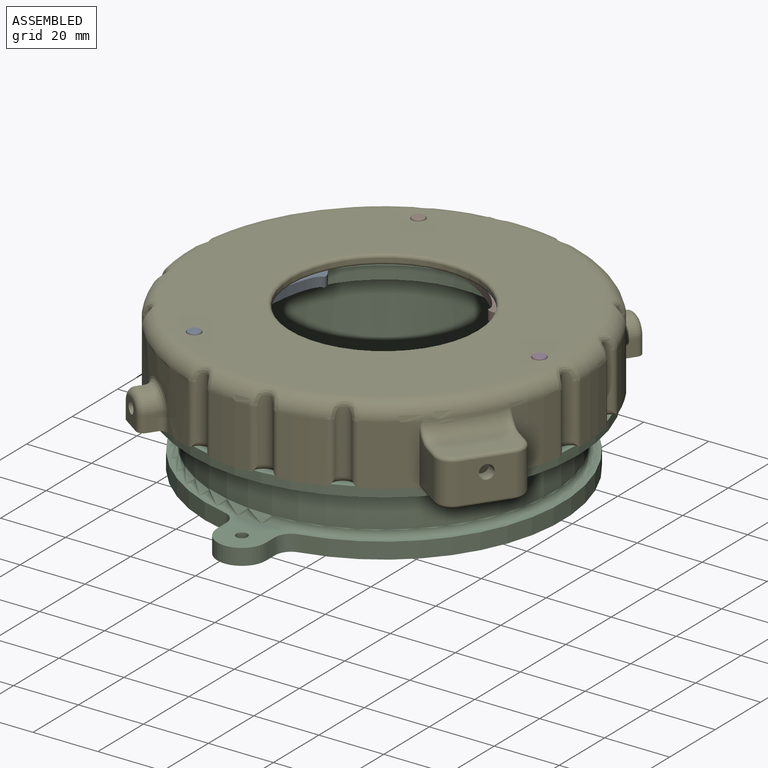
[diagram: assembled view]
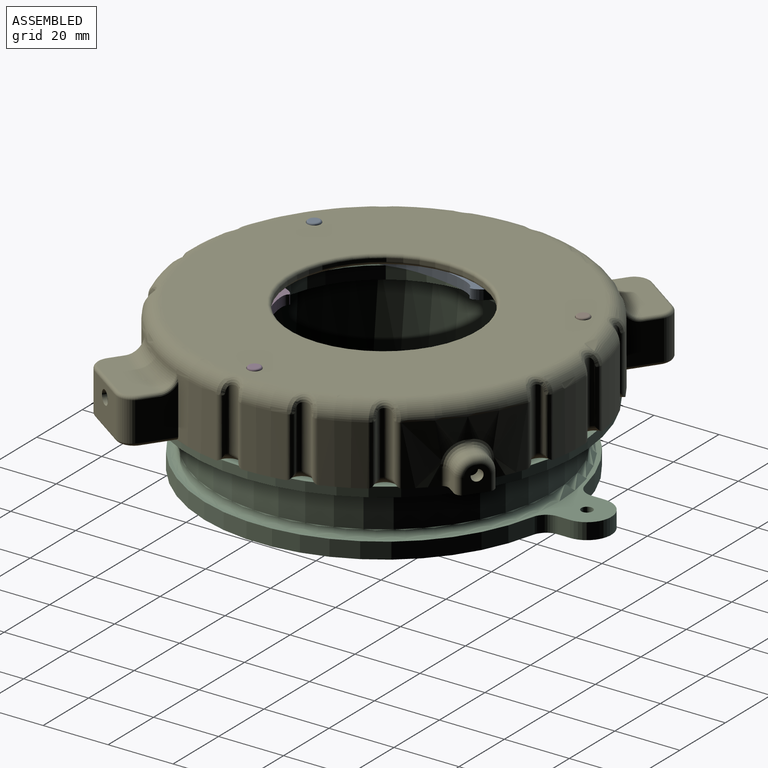
[diagram: assembled view, second angle]
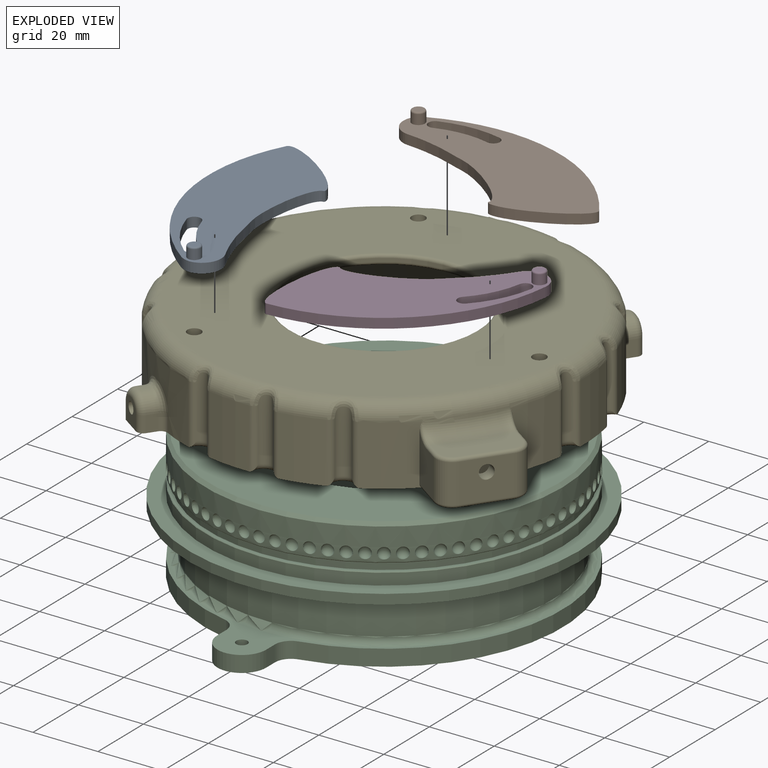
[diagram: exploded view]
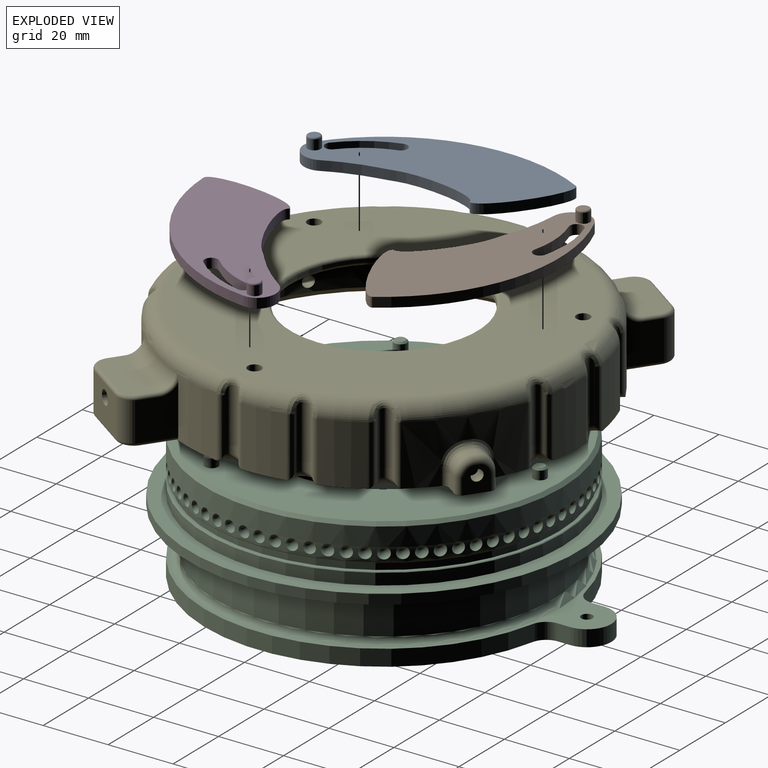
[diagram: exploded view, second angle]
ASSEMBLY  parts=5 mates=8
PART A: 17 faces, bbox 68.7x35.4x6.5 mm
  f0: extruded ~26.08x3.35mm, area 81.3mm2, adj f3,f4,f8,f16
  f1: extruded ~24.8x14.67mm, area 90.9mm2, adj f2,f3,f4,f8
  f2: cylinder r=54.5mm len=67.29mm, axis (0,0,-1), area 232.4mm2, adj f1,f3,f4,f14
  f3: plane 68.73x35.38mm, normal (0,0,1), area 1340.6mm2, adj f0,f1,f2,f5,f7,f8,f9,f10
  f4: plane 68.73x35.38mm, normal (0,0,-1), area 1353.2mm2, adj f0,f1,f2,f7,f8,f9,f10,f11
  f5: cylinder r=2mm len=4mm, axis (0,0,-1), area 37.7mm2, adj f3,f13
  f6: plane 3x3mm, normal (0,0,1), area 7.1mm2, adj f13
  f7: extruded ~14.32x6.42mm, area 47.2mm2, adj f3,f4,f15,f16
  f8: cylinder r=0.3mm len=3mm, axis (0,0,-1), area 1mm2, adj f0,f1,f3,f4
  f9: cylinder r=32.5mm len=14.49mm, axis (0,0,1), area 56.5mm2, adj f3,f4,f10,f12
  f10: cylinder r=2.05mm len=3.74mm, axis (0,0,1), area 19.3mm2, adj f3,f4,f9,f11
  f11: cylinder r=28.4mm len=12.66mm, axis (0,0,1), area 49.4mm2, adj f3,f4,f10,f12
  f12: cylinder r=2.05mm len=3.95mm, axis (0,0,1), area 19.3mm2, adj f3,f4,f9,f11
  f13: torus R=1.5mm, axis (0,0,1), area 9mm2, adj f5,f6
  f14: cylinder r=6mm len=3.7mm, axis (0,0,-1), area 11.6mm2, adj f2,f3,f4,f15
  f15: cylinder r=6mm len=9.02mm, axis (0,0,1), area 34.5mm2, adj f3,f4,f7,f14
  f16: cylinder r=60mm len=4.4mm, axis (0,0,-1), area 13.9mm2, adj f0,f3,f4,f7
PART B: same geometry as A
PART C: 116 faces, bbox 120x140x43.2 mm
  f0: plane 108x108mm, normal (0,0,1), area 5274.7mm2, adj f8,f103,f106,f109,f112
  f1: cylinder r=55mm len=110mm, axis (0,0,-1), area 1226.8mm2, adj f4,f10
  f2: cylinder r=60mm len=120mm, axis (0,0,1), area 1131mm2, adj f3,f4
  f3: plane 120x120mm, normal (0,0,-1), area 2148.8mm2, adj f2,f29
  f4: plane 120x120mm, normal (0,0,1), area 1806.4mm2, adj f1,f2
  f5: plane 109.6x109.6mm, normal (0,0,-1), area 358.1mm2, adj f6,f11
  f6: cylinder r=53.75mm len=107.5mm, axis (0,0,1), area 844.3mm2, adj f5,f7
  f7: plane 109.6x109.6mm, normal (0,0,1), area 358.1mm2, adj f6,f10
  f8: cone r=54mm half-angle=45deg, axis (0,0,-1), area 484.3mm2, adj f0,f9
  f9: cylinder r=55mm len=110mm, axis (0,0,-1), area 2746.1mm2, adj f8,f11,f31,f32,f33,f34,f35,f36
  f10: cone r=54.8mm half-angle=45deg, axis (0,0,-1), area 97.6mm2, adj f1,f7
  f11: cone r=55mm half-angle=45deg, axis (0,0,1), area 97.6mm2, adj f5,f9
  f12: cylinder r=52mm len=104mm, axis (0,0,-1), area 3463.3mm2, adj f29,f30
  f13: plane 5x3.82mm, normal (-1,0,0), area 19.1mm2, adj f14,f17,f25,f26
  f14: cylinder r=7.5mm len=15mm, axis (0,0,-1), area 117.8mm2, adj f13,f15,f25,f26
  f15: plane 5x3.82mm, normal (1,0,0), area 19.1mm2, adj f14,f23,f25,f26
  f16: cylinder r=1.75mm len=5mm, axis (0,0,-1), area 55mm2, adj f25,f26
  f17: cylinder r=5mm len=5mm, axis (0,0,-1), area 34mm2, adj f13,f24,f25,f26
  f18: cylinder r=5mm len=5mm, axis (0,0,-1), area 34mm2, adj f21,f24,f25,f26
  f19: plane 5x3.82mm, normal (1,0,0), area 19.1mm2, adj f20,f25,f26,f27
  f20: cylinder r=7.5mm len=15mm, axis (0,0,-1), area 117.8mm2, adj f19,f21,f25,f26
  f21: plane 5x3.82mm, normal (-1,0,0), area 19.1mm2, adj f18,f20,f25,f26
  f22: cylinder r=1.75mm len=5mm, axis (0,0,-1), area 55mm2, adj f25,f26
  f23: cylinder r=5mm len=5mm, axis (0,0,-1), area 34mm2, adj f15,f25,f26,f28
  f24: cylinder r=55mm len=107.59mm, axis (0,0,-1), area 748.5mm2, adj f17,f18,f25,f26
  f25: plane 140x110mm, normal (0,0,-1), area 9904.6mm2, adj f13,f14,f15,f16,f17,f18,f19,f20
  f26: plane 140x110mm, normal (0,0,1), area 743.7mm2, adj f13,f14,f15,f16,f17,f18,f19,f20
  f27: cylinder r=5mm len=5mm, axis (0,0,-1), area 34mm2, adj f19,f25,f26,f28
  f28: cylinder r=55mm len=107.59mm, axis (0,0,-1), area 748.5mm2, adj f23,f25,f26,f27
  f29: torus R=54mm, axis (0,0,-1), area 1040.8mm2, adj f3,f12
  f30: torus R=54mm, axis (0,0,-1), area 1040.8mm2, adj f12,f26
  f31: sphere r=1.75mm, area 19.1mm2, adj f9
  f32: sphere r=1.75mm, area 19.1mm2, adj f9
  f33: sphere r=1.75mm, area 20.8mm2, adj f9
  f34: sphere r=1.75mm, area 19.1mm2, adj f9
  f35: sphere r=1.75mm, area 19.2mm2, adj f9
  f36: sphere r=1.75mm, area 20.8mm2, adj f9
  f37: sphere r=1.75mm, area 19.1mm2, adj f9
  f38: sphere r=1.75mm, area 20.8mm2, adj f9
  f39: sphere r=1.75mm, area 19.2mm2, adj f9
  f40: sphere r=1.75mm, area 20.8mm2, adj f9
  f41: sphere r=1.75mm, area 19.2mm2, adj f9
  f42: sphere r=1.75mm, area 20.8mm2, adj f9
  f43: sphere r=1.75mm, area 20.8mm2, adj f9
  f44: sphere r=1.75mm, area 19.1mm2, adj f9
  f45: sphere r=1.75mm, area 19.1mm2, adj f9
  f46: sphere r=1.75mm, area 20.8mm2, adj f9
  f47: sphere r=1.75mm, area 20.8mm2, adj f9
  f48: sphere r=1.75mm, area 19.1mm2, adj f9
  f49: sphere r=1.75mm, area 19.1mm2, adj f9
  f50: sphere r=1.75mm, area 19.1mm2, adj f9
  f51: sphere r=1.75mm, area 20.8mm2, adj f9
  f52: sphere r=1.75mm, area 19.1mm2, adj f9
  f53: sphere r=1.75mm, area 19.2mm2, adj f9
  f54: sphere r=1.75mm, area 20.8mm2, adj f9
  f55: sphere r=1.75mm, area 19.1mm2, adj f9
  f56: sphere r=1.75mm, area 20.8mm2, adj f9
  f57: sphere r=1.75mm, area 19.2mm2, adj f9
  f58: sphere r=1.75mm, area 20.8mm2, adj f9
  f59: sphere r=1.75mm, area 19.2mm2, adj f9
  f60: sphere r=1.75mm, area 20.8mm2, adj f9
  f61: sphere r=1.75mm, area 20.8mm2, adj f9
  f62: sphere r=1.75mm, area 19.1mm2, adj f9
  f63: sphere r=1.75mm, area 19.1mm2, adj f9
  f64: sphere r=1.75mm, area 20.8mm2, adj f9
  f65: sphere r=1.75mm, area 20.8mm2, adj f9
  f66: sphere r=1.75mm, area 19.1mm2, adj f9
  f67: sphere r=1.75mm, area 19.1mm2, adj f9
  f68: sphere r=1.75mm, area 19.1mm2, adj f9
  f69: sphere r=1.75mm, area 20.8mm2, adj f9
  f70: sphere r=1.75mm, area 20.8mm2, adj f9
  f71: sphere r=1.75mm, area 19.1mm2, adj f9
  f72: sphere r=1.75mm, area 19.1mm2, adj f9
  f73: sphere r=1.75mm, area 20.8mm2, adj f9
  f74: sphere r=1.75mm, area 20.8mm2, adj f9
  f75: sphere r=1.75mm, area 19.2mm2, adj f9
  f76: sphere r=1.75mm, area 20.8mm2, adj f9
  f77: sphere r=1.75mm, area 19.2mm2, adj f9
  f78: sphere r=1.75mm, area 20.8mm2, adj f9
  f79: sphere r=1.75mm, area 19.1mm2, adj f9
  f80: sphere r=1.75mm, area 20.8mm2, adj f9
  f81: sphere r=1.75mm, area 19.2mm2, adj f9
  f82: sphere r=1.75mm, area 20.8mm2, adj f9
  f83: sphere r=1.75mm, area 20.8mm2, adj f9
  f84: sphere r=1.75mm, area 19.1mm2, adj f9
  f85: sphere r=1.75mm, area 19.1mm2, adj f9
  f86: sphere r=1.75mm, area 19.1mm2, adj f9
  f87: sphere r=1.75mm, area 20.8mm2, adj f9
  f88: sphere r=1.75mm, area 20.8mm2, adj f9
  f89: sphere r=1.75mm, area 19.1mm2, adj f9
  f90: sphere r=1.75mm, area 19.1mm2, adj f9
  f91: sphere r=1.75mm, area 20.8mm2, adj f9
  f92: sphere r=1.75mm, area 20.8mm2, adj f9
  f93: sphere r=1.75mm, area 19.2mm2, adj f9
  f94: sphere r=1.75mm, area 20.8mm2, adj f9
  f95: sphere r=1.75mm, area 19.2mm2, adj f9
  f96: sphere r=1.75mm, area 20.8mm2, adj f9
  f97: sphere r=1.75mm, area 19.1mm2, adj f9
  f98: sphere r=1.75mm, area 20.8mm2, adj f9
  f99: sphere r=1.75mm, area 19.2mm2, adj f9
  f100: sphere r=1.75mm, area 19.1mm2, adj f9
  f101: sphere r=1.75mm, area 20.8mm2, adj f9
  f102: sphere r=1.75mm, area 19.1mm2, adj f9
  f103: cylinder r=2mm len=4mm, axis (0,0,-1), area 33.9mm2, adj f0,f105
  f104: plane 3x3mm, normal (0,0,1), area 7.1mm2, adj f105
  f105: cone r=1.5mm half-angle=45deg, axis (0,0,-1), area 7.8mm2, adj f103,f104
  f106: cylinder r=2mm len=4mm, axis (0,0,-1), area 33.9mm2, adj f0,f108
  f107: plane 3x3mm, normal (0,0,1), area 7.1mm2, adj f108
  f108: cone r=1.5mm half-angle=45deg, axis (0,0,-1), area 7.8mm2, adj f106,f107
  f109: cylinder r=2mm len=4mm, axis (0,0,-1), area 33.9mm2, adj f0,f111
  f110: plane 3x3mm, normal (0,0,1), area 7.1mm2, adj f111
  f111: cone r=1.5mm half-angle=45deg, axis (0,0,-1), area 7.8mm2, adj f109,f110
  f112: cylinder r=35mm len=70mm, axis (0,0,1), area 879.6mm2, adj f0,f113
  f113: plane 94x94mm, normal (0,0,-1), area 3091.3mm2, adj f112,f115
  f114: plane 94x94mm, normal (0,0,1), area 6939.8mm2, adj f115
  f115: cylinder r=47mm len=94mm, axis (0,0,-1), area 9154.6mm2, adj f113,f114
PART D: same geometry as A
PART E: 203 faces, bbox 150.8x136x23.4 mm
  f0: cylinder r=2.15mm len=12.4mm, axis (1,0,0), area 167.5mm2, adj f31,f172
  f1: plane 53.71x23.5mm, normal (0,0,-1), area 489.7mm2, adj f21,f28,f34,f107,f122,f162,f163,f166
  f2: cylinder r=2.15mm len=12.4mm, axis (1,0,0), area 167.5mm2, adj f31,f166
  f3: plane 53.71x23.5mm, normal (0,0,-1), area 489.7mm2, adj f15,f27,f34,f137,f152,f168,f171,f172
  f4: plane 13.56x12.34mm, normal (0,0,-1), area 52.7mm2, adj f8,f34,f148,f152
  f5: plane 14.36x10.74mm, normal (0,0,-1), area 52.7mm2, adj f7,f34,f144,f148
  f6: cylinder r=61.2mm len=34.07mm, axis (0,0,-1), area 481mm2, adj f12,f18,f71,f72,f73,f74,f75,f114
  f7: cylinder r=61.2mm len=18.4mm, axis (0,0,-1), area 242.2mm2, adj f5,f12,f144,f145,f148,f150
  f8: cylinder r=61.2mm len=18.4mm, axis (0,0,-1), area 242.2mm2, adj f4,f12,f148,f149,f152,f154
  f9: plane 13.56x12.34mm, normal (0,0,-1), area 52.7mm2, adj f14,f34,f133,f137
  f10: plane 14.36x10.74mm, normal (0,0,-1), area 52.7mm2, adj f13,f34,f129,f133
  f11: plane 35.36x13.6mm, normal (0,0,-1), area 196.5mm2, adj f23,f34,f39,f40,f41,f45,f46,f49
  f12: torus R=56.2mm, axis (0,0,1), area 2369.6mm2, adj f6,f7,f8,f13,f14,f15,f19,f20
  f13: cylinder r=61.2mm len=18.4mm, axis (0,0,-1), area 242.2mm2, adj f10,f12,f129,f130,f133,f135
  f14: cylinder r=61.2mm len=18.4mm, axis (0,0,-1), area 242.2mm2, adj f9,f12,f133,f134,f137,f139
  f15: cylinder r=61.2mm len=18.4mm, axis (0,0,-1), area 283.5mm2, adj f3,f12,f82,f137,f138,f180,f185
  f16: plane 13.56x12.34mm, normal (0,0,-1), area 52.7mm2, adj f20,f34,f118,f122
  f17: plane 14.36x10.74mm, normal (0,0,-1), area 52.7mm2, adj f19,f34,f114,f118
  f18: plane 35.36x13.6mm, normal (0,0,-1), area 196.5mm2, adj f6,f34,f35,f36,f37,f63,f64,f67
  f19: cylinder r=61.2mm len=18.4mm, axis (0,0,-1), area 242.2mm2, adj f12,f17,f114,f115,f118,f120
  f20: cylinder r=61.2mm len=18.4mm, axis (0,0,-1), area 242.2mm2, adj f12,f16,f118,f119,f122,f124
  f21: cylinder r=61.2mm len=18.4mm, axis (0,0,-1), area 283.5mm2, adj f1,f12,f87,f122,f123,f186,f191
  f22: plane 13.56x12.34mm, normal (0,0,-1), area 52.7mm2, adj f25,f34,f103,f107
  f23: cylinder r=61.2mm len=34.07mm, axis (0,0,-1), area 481mm2, adj f11,f12,f53,f54,f55,f56,f57,f99
  f24: cylinder r=61.2mm len=18.4mm, axis (0,0,-1), area 242.2mm2, adj f12,f26,f99,f100,f103,f105
  f25: cylinder r=61.2mm len=18.4mm, axis (0,0,-1), area 242.2mm2, adj f12,f22,f103,f104,f107,f109
  f26: plane 14.36x10.74mm, normal (0,0,-1), area 52.7mm2, adj f24,f34,f99,f103
  f27: cylinder r=61.2mm len=18.4mm, axis (0,0,-1), area 283.5mm2, adj f3,f12,f84,f152,f153,f174,f181
  f28: cylinder r=61.2mm len=18.4mm, axis (0,0,-1), area 283.5mm2, adj f1,f12,f86,f107,f108,f190,f197
  f29: cylinder r=1.75mm len=6.3mm, axis (0,-1,0), area 69.3mm2, adj f31,f67
  f30: cylinder r=1.75mm len=6.3mm, axis (0,-1,0), area 69.3mm2, adj f31,f49
  f31: cylinder r=55.2mm len=110.4mm, axis (0,0,-1), area 6264mm2, adj f0,f2,f29,f30,f34,f81
  f32: plane 110x110mm, normal (0,0,-1), area 6705.6mm2, adj f81,f198,f200,f201,f202
  f33: plane 112.4x112.4mm, normal (0,0,1), area 7147mm2, adj f12,f157,f158,f159,f199
  f34: cone r=57.2mm half-angle=45deg, axis (0,0,-1), area 998.8mm2, adj f1,f3,f4,f5,f9,f10,f11,f16
  f35: plane 5x3.25mm, normal (-1,0,0), area 16.2mm2, adj f18,f70,f75,f80
  f36: plane 5x3.25mm, normal (1,0,0), area 16.2mm2, adj f18,f69,f71,f76
  f37: plane 8x7mm, normal (0,1,0), area 42.5mm2, adj f18,f44,f76,f77,f78,f79,f80
  f38: plane 2.8x1mm, normal (0,0,1), area 2.8mm2, adj f69,f70,f73,f78
  f39: plane 5x3.25mm, normal (-1,0,0), area 16.2mm2, adj f11,f52,f57,f58
  f40: plane 8x7mm, normal (0,-1,0), area 42.5mm2, adj f11,f43,f58,f59,f60,f61,f62
  f41: plane 5x3.25mm, normal (1,0,0), area 16.2mm2, adj f11,f51,f53,f62
  f42: plane 2.8x1mm, normal (0,0,1), area 2.8mm2, adj f51,f52,f55,f60
  f43: cylinder r=1.75mm len=4mm, axis (0,-1,0), area 44mm2, adj f40,f50
  f44: cylinder r=1.75mm len=4mm, axis (0,-1,0), area 44mm2, adj f37,f68
  f45: plane 6.63x2.5mm, normal (1,0,0), area 16.6mm2, adj f11,f48,f49,f50
  f46: plane 6.63x2.5mm, normal (-1,0,0), area 16.6mm2, adj f11,f47,f49,f50
  f47: plane 2.83x2.5mm, normal (-0.5,0,-0.87), area 8.2mm2, adj f46,f48,f49,f50
  f48: plane 2.83x2.5mm, normal (0.5,0,-0.87), area 8.2mm2, adj f45,f47,f49,f50
  f49: plane 8.26x5.65mm, normal (0,-1,0), area 32.5mm2, adj f11,f30,f45,f46,f47,f48
  f50: plane 8.26x5.65mm, normal (0,1,0), area 32.5mm2, adj f11,f43,f45,f46,f47,f48
  f51: cylinder r=5mm len=5mm, axis (0,-1,0), area 23.8mm2, adj f41,f42,f54,f61
  f52: cylinder r=5mm len=5mm, axis (0,1,0), area 23.8mm2, adj f39,f42,f56,f59
  f53: cylinder r=2mm len=5mm, axis (0,0,-1), area 14.5mm2, adj f11,f23,f41,f54
  f54: bspline ~8.56x8.28mm, area 27mm2, adj f23,f51,f53,f55
  f55: torus R=63.2mm, axis (0,0,1), area 3.1mm2, adj f23,f42,f54,f56
  f56: bspline ~8.56x8.28mm, area 27mm2, adj f23,f52,f55,f57
  f57: cylinder r=2mm len=5mm, axis (0,0,-1), area 14.5mm2, adj f11,f23,f39,f56
  f58: cylinder r=2mm len=5mm, axis (0,0,1), area 15.7mm2, adj f11,f39,f40,f59
  f59: torus R=3mm, axis (0,1,0), area 21.1mm2, adj f40,f52,f58,f60
  f60: cylinder r=2mm len=2mm, axis (-1,0,0), area 3.1mm2, adj f40,f42,f59,f61
  f61: torus R=3mm, axis (0,1,0), area 21.1mm2, adj f40,f51,f60,f62
  f62: cylinder r=2mm len=5mm, axis (0,0,-1), area 15.7mm2, adj f11,f40,f41,f61
  f63: plane 6.63x2.5mm, normal (-1,0,0), area 16.6mm2, adj f18,f66,f67,f68
  f64: plane 6.63x2.5mm, normal (1,0,0), area 16.6mm2, adj f18,f65,f67,f68
  f65: plane 2.83x2.5mm, normal (0.5,0,-0.87), area 8.2mm2, adj f64,f66,f67,f68
  f66: plane 2.83x2.5mm, normal (-0.5,0,-0.87), area 8.2mm2, adj f63,f65,f67,f68
  f67: plane 8.26x5.65mm, normal (0,1,0), area 32.5mm2, adj f18,f29,f63,f64,f65,f66
  f68: plane 8.26x5.65mm, normal (0,-1,0), area 32.5mm2, adj f18,f44,f63,f64,f65,f66
  f69: cylinder r=5mm len=5mm, axis (0,-1,0), area 23.8mm2, adj f36,f38,f72,f77
  f70: cylinder r=5mm len=5mm, axis (0,1,0), area 23.8mm2, adj f35,f38,f74,f79
  f71: cylinder r=2mm len=5mm, axis (0,0,-1), area 14.5mm2, adj f6,f18,f36,f72
  f72: bspline ~8.28x7.4mm, area 27mm2, adj f6,f69,f71,f73
  f73: torus R=63.2mm, axis (0,0,1), area 3.1mm2, adj f6,f38,f72,f74
  f74: bspline ~8.56x8.28mm, area 27mm2, adj f6,f70,f73,f75
  f75: cylinder r=2mm len=5mm, axis (0,0,-1), area 14.5mm2, adj f6,f18,f35,f74
  f76: cylinder r=2mm len=5mm, axis (0,0,1), area 15.7mm2, adj f18,f36,f37,f77
  f77: torus R=3mm, axis (0,1,0), area 21.1mm2, adj f37,f69,f76,f78
  f78: cylinder r=2mm len=2mm, axis (1,0,0), area 3.1mm2, adj f37,f38,f77,f79
  f79: torus R=3mm, axis (0,1,0), area 21.1mm2, adj f37,f70,f78,f80
  f80: cylinder r=2mm len=5mm, axis (0,0,-1), area 15.7mm2, adj f18,f35,f37,f79
  f81: cone r=55.2mm half-angle=45deg, axis (0,0,-1), area 97.9mm2, adj f31,f32
  f82: plane 14.97x10.09mm, normal (0,-1,0), area 125.6mm2, adj f15,f93,f179,f180,f185
  f83: plane 15x12mm, normal (-1,0,0), area 165.5mm2, adj f92,f93,f161,f177,f183
  f84: plane 14.97x10.09mm, normal (0,1,0), area 125.6mm2, adj f27,f92,f174,f175,f181
  f85: plane 23x8.83mm, normal (0,0,1), area 180.6mm2, adj f95,f175,f176,f177,f178,f179
  f86: plane 14.97x10.09mm, normal (0,-1,0), area 125.6mm2, adj f28,f91,f190,f196,f197
  f87: plane 14.97x10.09mm, normal (0,1,0), area 125.6mm2, adj f21,f90,f186,f191,f192
  f88: plane 15x12mm, normal (1,0,0), area 165.5mm2, adj f90,f91,f160,f188,f194
  f89: plane 23x8.83mm, normal (0,0,1), area 180.6mm2, adj f94,f192,f193,f194,f195,f196
  f90: cylinder r=5mm len=12mm, axis (0,0,1), area 94.2mm2, adj f87,f88,f187,f193
  f91: cylinder r=5mm len=12mm, axis (0,0,-1), area 94.2mm2, adj f86,f88,f189,f195
  f92: cylinder r=5mm len=12mm, axis (0,0,-1), area 94.2mm2, adj f83,f84,f176,f182
  f93: cylinder r=5mm len=12mm, axis (0,0,1), area 94.2mm2, adj f82,f83,f178,f184
  f94: torus R=66.18mm, axis (0,0,-1), area 174.7mm2, adj f12,f89,f191,f197
  f95: torus R=66.18mm, axis (0,0,-1), area 174.7mm2, adj f12,f85,f174,f180
  f96: cylinder r=2.5mm len=19.36mm, axis (0,0,-1), area 101.7mm2, adj f107,f108,f109,f110
  f97: cylinder r=2.5mm len=19.36mm, axis (0,0,-1), area 101.7mm2, adj f103,f104,f105,f106
  f98: cylinder r=2.5mm len=19.36mm, axis (0,0,-1), area 101.7mm2, adj f99,f100,f101,f102
  f99: torus R=4.5mm, axis (0,0,1), area 27.7mm2, adj f11,f23,f24,f26,f34,f98,f100,f101
  f100: cylinder r=2mm len=18.36mm, axis (0,0,1), area 39.8mm2, adj f24,f98,f99,f102
  f101: cylinder r=2mm len=18.36mm, axis (0,0,1), area 39.8mm2, adj f23,f98,f99,f102
  f102: bspline ~7.7x5.94mm, area 31.7mm2, adj f12,f98,f100,f101
  f103: torus R=4.5mm, axis (0,0,1), area 27.7mm2, adj f22,f24,f25,f26,f34,f97,f104,f105
  f104: cylinder r=2mm len=18.36mm, axis (0,0,1), area 39.8mm2, adj f25,f97,f103,f106
  f105: cylinder r=2mm len=18.36mm, axis (0,0,1), area 39.8mm2, adj f24,f97,f103,f106
  f106: bspline ~6.84x6.41mm, area 31.7mm2, adj f12,f97,f104,f105
  f107: torus R=4.5mm, axis (0,0,1), area 27.7mm2, adj f1,f22,f25,f28,f34,f96,f108,f109
  f108: cylinder r=2mm len=18.36mm, axis (0,0,1), area 39.8mm2, adj f28,f96,f107,f110
  f109: cylinder r=2mm len=18.36mm, axis (0,0,1), area 39.8mm2, adj f25,f96,f107,f110
  f110: bspline ~7.26x5.94mm, area 31.7mm2, adj f12,f96,f108,f109
  f111: cylinder r=2.5mm len=19.36mm, axis (0,0,-1), area 101.7mm2, adj f122,f123,f124,f125
  f112: cylinder r=2.5mm len=19.36mm, axis (0,0,-1), area 101.7mm2, adj f118,f119,f120,f121
  f113: cylinder r=2.5mm len=19.36mm, axis (0,0,-1), area 101.7mm2, adj f114,f115,f116,f117
  f114: torus R=4.5mm, axis (0,0,1), area 27.7mm2, adj f6,f17,f18,f19,f34,f113,f115,f116
  f115: cylinder r=2mm len=18.36mm, axis (0,0,1), area 39.8mm2, adj f19,f113,f114,f117
  f116: cylinder r=2mm len=18.36mm, axis (0,0,1), area 39.8mm2, adj f6,f113,f114,f117
  f117: bspline ~7.7x5.93mm, area 31.7mm2, adj f12,f113,f115,f116
  f118: torus R=4.5mm, axis (0,0,1), area 27.7mm2, adj f16,f17,f19,f20,f34,f112,f119,f120
  f119: cylinder r=2mm len=18.36mm, axis (0,0,1), area 39.8mm2, adj f20,f112,f118,f121
  f120: cylinder r=2mm len=18.36mm, axis (0,0,1), area 39.8mm2, adj f19,f112,f118,f121
  f121: bspline ~6.85x6.41mm, area 31.7mm2, adj f12,f112,f119,f120
  f122: torus R=4.5mm, axis (0,0,1), area 27.7mm2, adj f1,f16,f20,f21,f34,f111,f123,f124
  f123: cylinder r=2mm len=18.36mm, axis (0,0,1), area 39.8mm2, adj f21,f111,f122,f125
  f124: cylinder r=2mm len=18.36mm, axis (0,0,1), area 39.8mm2, adj f20,f111,f122,f125
  f125: bspline ~7.26x5.94mm, area 31.7mm2, adj f12,f111,f123,f124
  f126: cylinder r=2.5mm len=19.36mm, axis (0,0,-1), area 101.7mm2, adj f137,f138,f139,f140
  f127: cylinder r=2.5mm len=19.36mm, axis (0,0,-1), area 101.7mm2, adj f133,f134,f135,f136
  f128: cylinder r=2.5mm len=19.36mm, axis (0,0,-1), area 101.7mm2, adj f129,f130,f131,f132
  f129: torus R=4.5mm, axis (0,0,1), area 27.7mm2, adj f10,f11,f13,f23,f34,f128,f130,f131
  f130: cylinder r=2mm len=18.36mm, axis (0,0,1), area 39.8mm2, adj f13,f128,f129,f132
  f131: cylinder r=2mm len=18.36mm, axis (0,0,1), area 39.8mm2, adj f23,f128,f129,f132
  f132: bspline ~7.7x5.93mm, area 31.7mm2, adj f12,f128,f130,f131
  f133: torus R=4.5mm, axis (0,0,1), area 27.7mm2, adj f9,f10,f13,f14,f34,f127,f134,f135
  f134: cylinder r=2mm len=18.36mm, axis (0,0,1), area 39.8mm2, adj f14,f127,f133,f136
  f135: cylinder r=2mm len=18.36mm, axis (0,0,1), area 39.8mm2, adj f13,f127,f133,f136
  f136: bspline ~6.85x6.41mm, area 31.7mm2, adj f12,f127,f134,f135
  f137: torus R=4.5mm, axis (0,0,1), area 27.7mm2, adj f3,f9,f14,f15,f34,f126,f138,f139
  f138: cylinder r=2mm len=18.36mm, axis (0,0,1), area 39.8mm2, adj f15,f126,f137,f140
  f139: cylinder r=2mm len=18.36mm, axis (0,0,1), area 39.8mm2, adj f14,f126,f137,f140
  f140: bspline ~7.26x5.93mm, area 31.7mm2, adj f12,f126,f138,f139
  f141: cylinder r=2.5mm len=19.36mm, axis (0,0,-1), area 101.7mm2, adj f152,f153,f154,f155
  f142: cylinder r=2.5mm len=19.36mm, axis (0,0,-1), area 101.7mm2, adj f148,f149,f150,f151
  f143: cylinder r=2.5mm len=19.36mm, axis (0,0,-1), area 101.7mm2, adj f144,f145,f146,f147
  f144: torus R=4.5mm, axis (0,0,1), area 27.7mm2, adj f5,f6,f7,f18,f34,f143,f145,f146
  f145: cylinder r=2mm len=18.36mm, axis (0,0,1), area 39.8mm2, adj f7,f143,f144,f147
  f146: cylinder r=2mm len=18.36mm, axis (0,0,1), area 39.8mm2, adj f6,f143,f144,f147
  f147: bspline ~7.7x5.94mm, area 31.7mm2, adj f12,f143,f145,f146
  f148: torus R=4.5mm, axis (0,0,1), area 27.7mm2, adj f4,f5,f7,f8,f34,f142,f149,f150
  f149: cylinder r=2mm len=18.36mm, axis (0,0,1), area 39.8mm2, adj f8,f142,f148,f151
  f150: cylinder r=2mm len=18.36mm, axis (0,0,1), area 39.8mm2, adj f7,f142,f148,f151
  f151: bspline ~6.84x6.41mm, area 31.7mm2, adj f12,f142,f149,f150
  f152: torus R=4.5mm, axis (0,0,1), area 27.7mm2, adj f3,f4,f8,f27,f34,f141,f153,f154
  f153: cylinder r=2mm len=18.36mm, axis (0,0,1), area 39.8mm2, adj f27,f141,f152,f155
  f154: cylinder r=2mm len=18.36mm, axis (0,0,1), area 39.8mm2, adj f8,f141,f152,f155
  f155: bspline ~7.26x5.94mm, area 31.7mm2, adj f12,f141,f153,f154
  f156: cylinder r=28.5mm len=57mm, axis (0,0,1), area 179.1mm2, adj f198,f199
  f157: cylinder r=2.1mm len=4.2mm, axis (0,0,1), area 33mm2, adj f33,f202
  f158: cylinder r=2.1mm len=4.2mm, axis (0,0,1), area 33mm2, adj f33,f200
  f159: cylinder r=2.1mm len=4.2mm, axis (0,0,1), area 33mm2, adj f33,f201
  f160: cylinder r=2.15mm len=4.3mm, axis (1,0,0), area 54mm2, adj f88,f167
  f161: cylinder r=2.15mm len=4.3mm, axis (1,0,0), area 54mm2, adj f83,f173
  f162: plane 11.05x3.4mm, normal (0,1,0), area 37.6mm2, adj f1,f165,f166,f167
  f163: plane 11.05x3.4mm, normal (0,-1,0), area 37.6mm2, adj f1,f164,f166,f167
  f164: plane 3.55x3.4mm, normal (0,-0.5,-0.87), area 13.9mm2, adj f163,f165,f166,f167
  f165: plane 3.55x3.4mm, normal (0,0.5,-0.87), area 13.9mm2, adj f162,f164,f166,f167
  f166: plane 13.1x7.1mm, normal (1,0,0), area 71.2mm2, adj f1,f2,f162,f163,f164,f165
  f167: plane 13.1x7.1mm, normal (-1,0,0), area 71.2mm2, adj f1,f160,f162,f163,f164,f165
  f168: plane 11.05x3.4mm, normal (0,1,0), area 37.6mm2, adj f3,f169,f172,f173
  f169: plane 3.55x3.4mm, normal (0,0.5,-0.87), area 13.9mm2, adj f168,f170,f172,f173
  f170: plane 3.55x3.4mm, normal (0,-0.5,-0.87), area 13.9mm2, adj f169,f171,f172,f173
  f171: plane 11.05x3.4mm, normal (0,-1,0), area 37.6mm2, adj f3,f170,f172,f173
  f172: plane 13.1x7.1mm, normal (-1,0,0), area 71.2mm2, adj f0,f3,f168,f169,f170,f171
  f173: plane 13.1x7.1mm, normal (1,0,0), area 71.2mm2, adj f3,f161,f168,f169,f170,f171
  f174: bspline ~7.48x6.11mm, area 10.2mm2, adj f12,f27,f84,f95,f175
  f175: cylinder r=1mm len=4.83mm, axis (-1,0,0), area 7.6mm2, adj f84,f85,f174,f176
  f176: torus R=4mm, axis (0,0,-1), area 11.4mm2, adj f85,f92,f175,f177
  f177: cylinder r=1mm len=15mm, axis (0,-1,0), area 23.6mm2, adj f83,f85,f176,f178
  f178: torus R=4mm, axis (0,0,-1), area 11.4mm2, adj f85,f93,f177,f179
  f179: cylinder r=1mm len=4.83mm, axis (1,0,0), area 7.6mm2, adj f82,f85,f178,f180
  f180: bspline ~7.48x6.11mm, area 10.2mm2, adj f12,f15,f82,f95,f179
  f181: cylinder r=1mm len=10.09mm, axis (-1,0,0), area 15.7mm2, adj f3,f27,f84,f182
  f182: torus R=4mm, axis (0,0,1), area 11.4mm2, adj f3,f92,f181,f183
  f183: cylinder r=1mm len=15mm, axis (0,-1,0), area 23.6mm2, adj f3,f83,f182,f184
  f184: torus R=4mm, axis (0,0,1), area 11.4mm2, adj f3,f93,f183,f185
  f185: cylinder r=1mm len=10.09mm, axis (1,0,0), area 15.7mm2, adj f3,f15,f82,f184
  f186: cylinder r=1mm len=10.09mm, axis (-1,0,0), area 15.7mm2, adj f1,f21,f87,f187
  f187: torus R=4mm, axis (0,0,1), area 11.4mm2, adj f1,f90,f186,f188
  f188: cylinder r=1mm len=15mm, axis (0,1,0), area 23.6mm2, adj f1,f88,f187,f189
  f189: torus R=4mm, axis (0,0,1), area 11.4mm2, adj f1,f91,f188,f190
  f190: cylinder r=1mm len=10.09mm, axis (1,0,0), area 15.7mm2, adj f1,f28,f86,f189
  f191: bspline ~7.48x6.11mm, area 10.2mm2, adj f12,f21,f87,f94,f192
  f192: cylinder r=1mm len=4.83mm, axis (-1,0,0), area 7.6mm2, adj f87,f89,f191,f193
  f193: torus R=4mm, axis (0,0,-1), area 11.4mm2, adj f89,f90,f192,f194
  f194: cylinder r=1mm len=15mm, axis (0,1,0), area 23.6mm2, adj f88,f89,f193,f195
  f195: torus R=4mm, axis (0,0,-1), area 11.4mm2, adj f89,f91,f194,f196
  f196: cylinder r=1mm len=4.83mm, axis (1,0,0), area 7.6mm2, adj f86,f89,f195,f197
  f197: bspline ~7.48x6.11mm, area 10.2mm2, adj f12,f28,f86,f94,f196
  f198: torus R=29.5mm, axis (0,0,1), area 284.9mm2, adj f32,f156
  f199: torus R=29.5mm, axis (0,0,1), area 284.9mm2, adj f33,f156
  f200: cone r=2.6mm half-angle=45deg, axis (0,0,-1), area 10.4mm2, adj f32,f158
  f201: cone r=2.6mm half-angle=45deg, axis (0,0,-1), area 10.4mm2, adj f32,f159
  f202: cone r=2.6mm half-angle=45deg, axis (0,0,-1), area 10.4mm2, adj f32,f157
PLACE A rot(axis=(0,0,1),84.2deg) t=(-2.51,31.47,44.44)mm
PLACE B rot(axis=(0,0,-1),35.8deg) t=(42.42,39.53,44.44)mm
PLACE C t=(22.28,22.53,9.44)mm fixed
PLACE D rot(axis=(0,0,-1),155.8deg) t=(26.94,-3.41,44.44)mm
PLACE E rot(axis=(0,0,-1),34.8deg) t=(22.28,22.53,27.04)mm
MATE cylindrical D.f5 <-> E.f158  axis (0,0,-1) through (73.1,18.27,48.94)mm
MATE planar E.f6 <-> B.f3  axis (0,0,-1) through (22.28,22.53,47.44)mm
MATE planar C.f106 <-> B.f8  axis (0,0,1) through (-19.29,-1.47,44.44)mm
MATE planar D.f4 <-> C.f112  axis (0,0,-1) through (47.29,-8.41,44.44)mm
MATE cylindrical E.f159 <-> B.f5  axis (0,0,1) through (0.56,68.67,49.19)mm
MATE cylindrical E.f157 <-> A.f5  axis (0,0,1) through (-6.82,-19.35,49.19)mm
MATE revolute E.f31 <-> C.f2  axis (0,0,-1) through (22.28,22.53,27.04)mm
MATE planar A.f4 <-> C.f6  axis (0,0,-1) through (-17.02,16.34,44.44)mm
